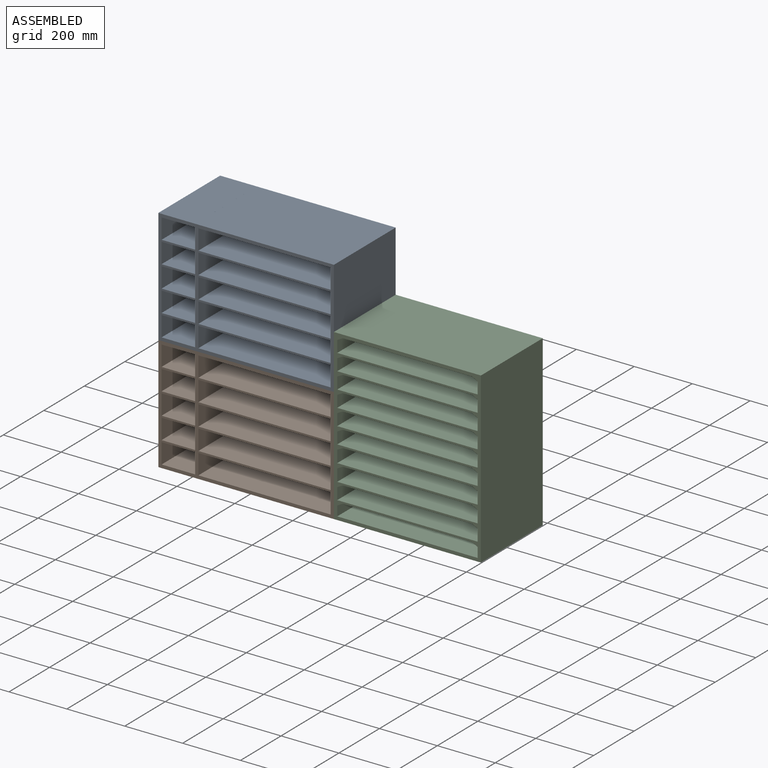
[diagram: assembled view]
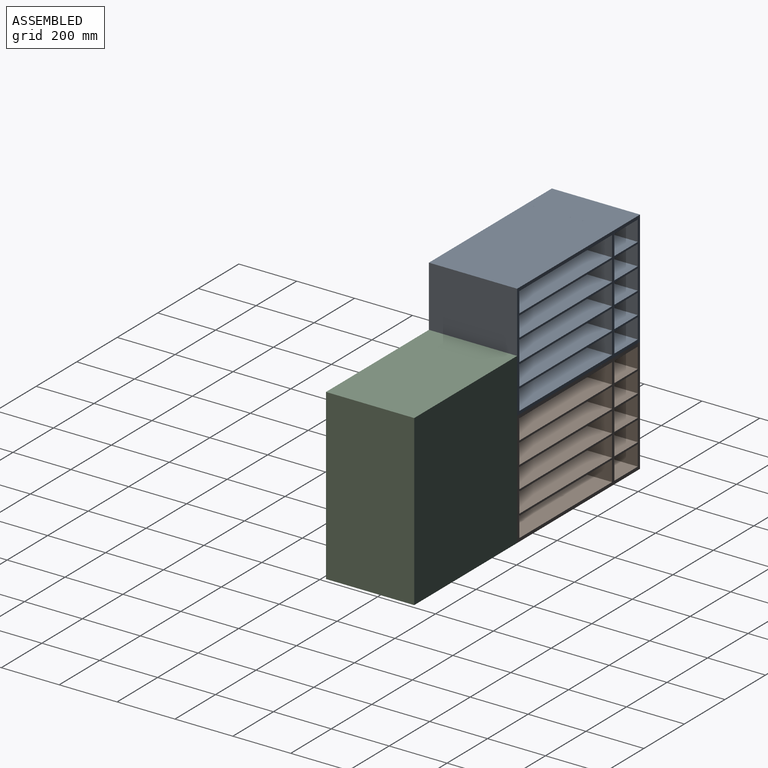
[diagram: assembled view, second angle]
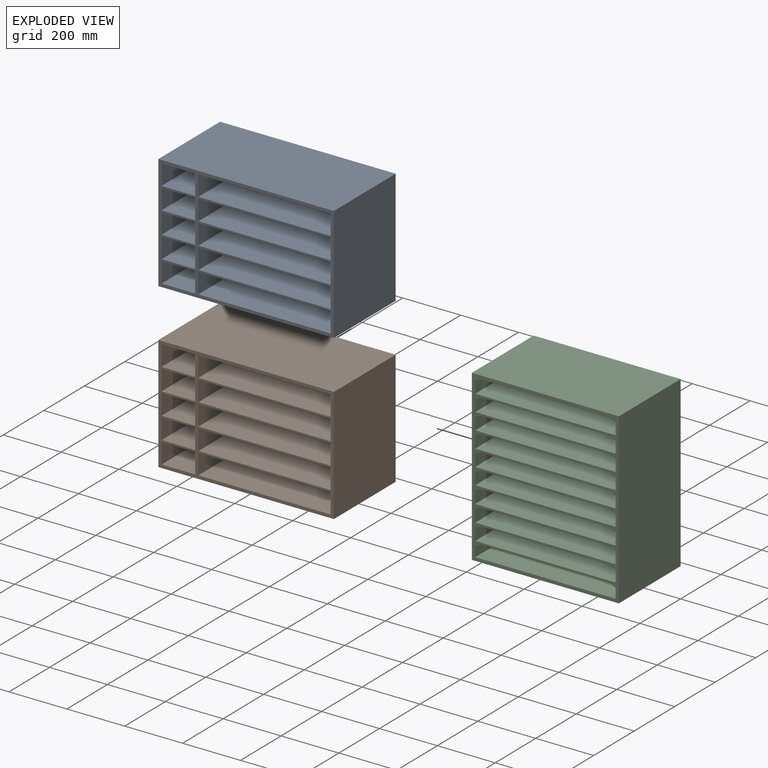
[diagram: exploded view]
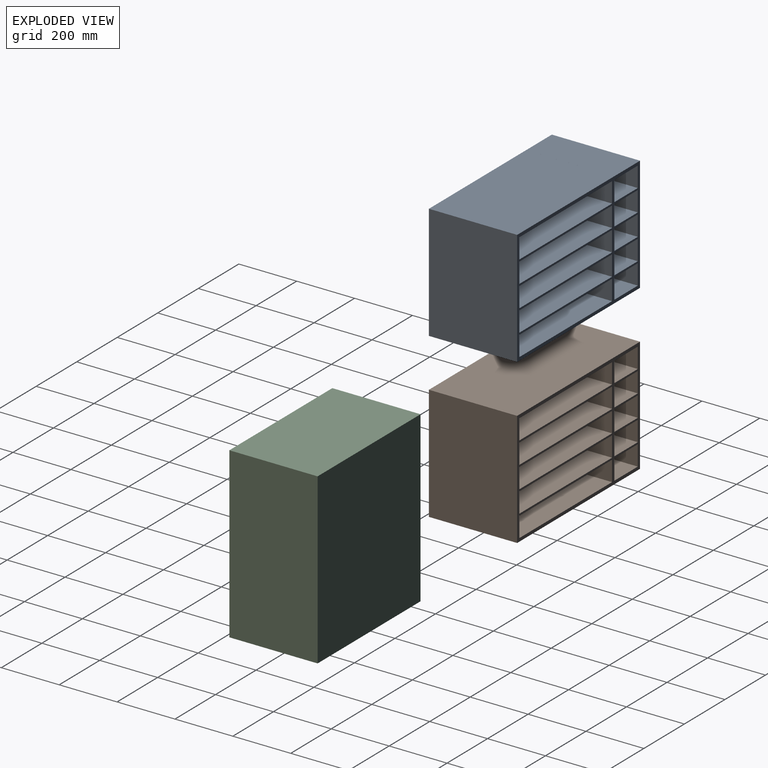
[diagram: exploded view, second angle]
ASSEMBLY  parts=3 mates=2
PART A: 49 faces, bbox 397x606.6x304.8 mm
  f0: plane 385.83x304.8mm, normal (0,-1,0), area 117599.8mm2, adj f1,f2,f5,f26
  f1: plane 606.57x397mm, normal (0,0,1), area 40674mm2, adj f0,f3,f4,f5,f6,f7,f8,f9
  f2: plane 606.57x397mm, normal (0,0,-1), area 40674mm2, adj f0,f3,f4,f5,f6,f7,f8,f9
  f3: plane 479.55x304.8mm, normal (1,0,0), area 146167.4mm2, adj f1,f2,f4,f48
  f4: plane 397x304.8mm, normal (0,1,0), area 121006.2mm2, adj f1,f2,f3,f5
  f5: plane 479.55x304.8mm, normal (-1,0,0), area 146167.4mm2, adj f0,f1,f2,f4
  f6: plane 304.8x69.85mm, normal (0,1,0), area 21290.3mm2, adj f1,f2,f7,f21
  f7: plane 457.2x304.8mm, normal (1,0,0), area 139354.6mm2, adj f1,f2,f6,f8
  f8: plane 304.8x69.85mm, normal (0,-1,0), area 21290.3mm2, adj f1,f2,f7,f21
  f9: plane 304.8x69.85mm, normal (0,1,0), area 21290.3mm2, adj f1,f2,f10,f22
  f10: plane 457.2x304.8mm, normal (1,0,0), area 139354.6mm2, adj f1,f2,f9,f11
  f11: plane 304.8x69.85mm, normal (0,-1,0), area 21290.3mm2, adj f1,f2,f10,f22
  f12: plane 304.8x69.85mm, normal (0,1,0), area 21290.3mm2, adj f1,f2,f13,f23
  f13: plane 457.2x304.8mm, normal (1,0,0), area 139354.6mm2, adj f1,f2,f12,f14
  f14: plane 304.8x69.85mm, normal (0,-1,0), area 21290.3mm2, adj f1,f2,f13,f23
  f15: plane 457.2x304.8mm, normal (-1,0,0), area 139354.6mm2, adj f1,f2,f16,f24
  f16: plane 304.8x69.85mm, normal (0,1,0), area 21290.3mm2, adj f1,f2,f15,f17
  f17: plane 457.2x304.8mm, normal (1,0,0), area 139354.6mm2, adj f1,f2,f16,f24
  f18: plane 304.8x69.85mm, normal (0,1,0), area 21290.3mm2, adj f1,f2,f19,f25
  f19: plane 457.2x304.8mm, normal (1,0,0), area 139354.6mm2, adj f1,f2,f18,f20
  f20: plane 304.8x69.85mm, normal (0,-1,0), area 21290.3mm2, adj f1,f2,f19,f25
  f21: plane 457.2x304.8mm, normal (-1,0,0), area 139354.6mm2, adj f1,f2,f6,f8
  f22: plane 457.2x304.8mm, normal (-1,0,0), area 139354.6mm2, adj f1,f2,f9,f11
  f23: plane 457.2x304.8mm, normal (-1,0,0), area 139354.6mm2, adj f1,f2,f12,f14
  f24: plane 304.8x69.85mm, normal (0,-1,0), area 21290.3mm2, adj f1,f2,f15,f17
  f25: plane 457.2x304.8mm, normal (-1,0,0), area 139354.6mm2, adj f1,f2,f18,f20
  f26: plane 304.8x115.84mm, normal (-1,0,0), area 35307.1mm2, adj f0,f1,f2,f27
  f27: plane 304.8x69.85mm, normal (0,1,0), area 21290.3mm2, adj f1,f2,f26,f28
  f28: plane 304.8x115.83mm, normal (1,0,0), area 35306.4mm2, adj f1,f2,f27,f29
  f29: plane 304.8x6.35mm, normal (0,1,0), area 1935.5mm2, adj f1,f2,f28,f30
  f30: plane 304.8x115.83mm, normal (-1,0,0), area 35306.3mm2, adj f1,f2,f29,f31
  f31: plane 304.8x69.85mm, normal (0,1,0), area 21290.3mm2, adj f1,f2,f30,f32
  f32: plane 304.8x115.83mm, normal (1,0,0), area 35305.6mm2, adj f1,f2,f31,f33
  f33: plane 304.8x6.35mm, normal (0,1,0), area 1935.5mm2, adj f1,f2,f32,f34
  f34: plane 304.8x115.83mm, normal (-1,0,0), area 35305.5mm2, adj f1,f2,f33,f35
  f35: plane 304.8x69.85mm, normal (0,1,0), area 21290.3mm2, adj f1,f2,f34,f36
  f36: plane 304.8x115.83mm, normal (1,0,0), area 35304.8mm2, adj f1,f2,f35,f37
  f37: plane 304.8x6.35mm, normal (0,1,0), area 1935.5mm2, adj f1,f2,f36,f38
  f38: plane 304.8x115.83mm, normal (-1,0,0), area 35304.8mm2, adj f1,f2,f37,f39
  f39: plane 304.8x69.85mm, normal (0,1,0), area 21290.3mm2, adj f1,f2,f38,f40
  f40: plane 304.8x115.83mm, normal (1,0,0), area 35304mm2, adj f1,f2,f39,f41
  f41: plane 304.8x6.35mm, normal (0,1,0), area 1935.5mm2, adj f1,f2,f40,f42
  f42: plane 304.8x115.83mm, normal (-1,0,0), area 35304mm2, adj f1,f2,f41,f43
  f43: plane 304.8x69.85mm, normal (0,1,0), area 21290.3mm2, adj f1,f2,f42,f44
  f44: plane 304.8x115.82mm, normal (1,0,0), area 35303.3mm2, adj f1,f2,f43,f45
  f45: plane 304.8x11.18mm, normal (0,1,0), area 3406.4mm2, adj f1,f2,f44,f46
  f46: plane 304.8x127mm, normal (-1,0,0), area 38709.6mm2, adj f1,f2,f45,f47
  f47: plane 397x304.8mm, normal (0,-1,0), area 121006.2mm2, adj f1,f2,f46,f48
  f48: plane 304.8x127.01mm, normal (1,0,0), area 38713.6mm2, adj f1,f2,f3,f47
PART B: same geometry as A
PART C: 76 faces, bbox 508x304.8x584.2 mm
  f0: plane 485.14x50.8mm, normal (0,-1,0), area 24451.6mm2, adj f1,f22,f23,f54,f70,f75
  f1: plane 447.04x292.1mm, normal (0,0,-1), area 130580.4mm2, adj f0,f40,f70,f75
  f2: plane 485.14x50.8mm, normal (0,-1,0), area 24451.6mm2, adj f5,f19,f20,f55,f71,f74
  f3: plane 485.14x52.07mm, normal (0,-1,0), area 25067.7mm2, adj f4,f17,f18,f52,f72,f73
  f4: plane 447.04x292.1mm, normal (0,0,-1), area 130580.4mm2, adj f3,f40,f72,f73
  f5: plane 447.04x292.1mm, normal (0,0,-1), area 130580.4mm2, adj f2,f40,f71,f74
  f6: plane 485.14x52.07mm, normal (0,-1,0), area 25067.7mm2, adj f13,f24,f25,f51,f60,f67
  f7: plane 485.14x50.8mm, normal (0,-1,0), area 24451.6mm2, adj f8,f34,f35,f50,f58,f65
  f8: plane 447.04x292.1mm, normal (0,0,-1), area 130580.4mm2, adj f7,f40,f58,f65
  f9: plane 485.14x50.8mm, normal (0,-1,0), area 24451.6mm2, adj f16,f36,f37,f48,f56,f64
  f10: plane 485.14x50.8mm, normal (0,-1,0), area 24451.6mm2, adj f15,f44,f46,f47,f57,f63
  f11: plane 447.04x292.1mm, normal (0,0,-1), area 130580.4mm2, adj f33,f40,f62,f69
  f12: plane 447.04x292.1mm, normal (0,0,-1), area 130580.4mm2, adj f26,f40,f61,f68
  f13: plane 447.04x292.1mm, normal (0,0,-1), area 130580.4mm2, adj f6,f40,f60,f67
  f14: plane 447.04x292.1mm, normal (0,0,-1), area 130580.4mm2, adj f21,f40,f59,f66
  f15: plane 447.04x292.1mm, normal (0,0,-1), area 130580.4mm2, adj f10,f40,f57,f63
  f16: plane 447.04x292.1mm, normal (0,0,-1), area 130580.4mm2, adj f9,f40,f56,f64
  f17: plane 292.1x41.91mm, normal (1,0,0), area 12241.9mm2, adj f3,f40,f52,f73
  f18: plane 292.1x41.91mm, normal (-1,0,0), area 12241.9mm2, adj f3,f40,f52,f72
  f19: plane 292.1x40.64mm, normal (1,0,0), area 11870.9mm2, adj f2,f40,f55,f74
  f20: plane 292.1x40.64mm, normal (-1,0,0), area 11870.9mm2, adj f2,f40,f55,f71
  f21: plane 485.14x50.8mm, normal (0,-1,0), area 24451.6mm2, adj f14,f29,f30,f53,f59,f66
  f22: plane 292.1x40.64mm, normal (1,0,0), area 11870.9mm2, adj f0,f40,f54,f75
  f23: plane 292.1x40.64mm, normal (-1,0,0), area 11870.9mm2, adj f0,f40,f54,f70
  f24: plane 292.1x41.91mm, normal (1,0,0), area 12241.9mm2, adj f6,f40,f51,f67
  f25: plane 292.1x41.91mm, normal (-1,0,0), area 12241.9mm2, adj f6,f40,f51,f60
  f26: plane 485.14x50.8mm, normal (0,-1,0), area 24451.6mm2, adj f12,f27,f28,f49,f61,f68
  f27: plane 292.1x40.64mm, normal (1,0,0), area 11870.9mm2, adj f26,f40,f49,f68
  f28: plane 292.1x40.64mm, normal (-1,0,0), area 11870.9mm2, adj f26,f40,f49,f61
  f29: plane 292.1x40.64mm, normal (1,0,0), area 11870.9mm2, adj f21,f40,f53,f66
  f30: plane 292.1x40.64mm, normal (-1,0,0), area 11870.9mm2, adj f21,f40,f53,f59
  f31: plane 292.1x34.29mm, normal (1,0,0), area 10016.1mm2, adj f33,f40,f45,f69
  f32: plane 292.1x34.29mm, normal (-1,0,0), area 10016.1mm2, adj f33,f40,f45,f62
  f33: plane 485.14x44.45mm, normal (0,-1,0), area 21370.9mm2, adj f11,f31,f32,f45,f62,f69
  f34: plane 292.1x40.64mm, normal (1,0,0), area 11870.9mm2, adj f7,f40,f50,f65
  f35: plane 292.1x40.64mm, normal (-1,0,0), area 11870.9mm2, adj f7,f40,f50,f58
  f36: plane 292.1x40.64mm, normal (1,0,0), area 11870.9mm2, adj f9,f40,f48,f64
  f37: plane 292.1x40.64mm, normal (-1,0,0), area 11870.9mm2, adj f9,f40,f48,f56
  f38: plane 584.2x508mm, normal (0,1,0), area 296773.6mm2, adj f39,f41,f42,f43
  f39: plane 584.2x304.8mm, normal (-1,0,0), area 178064.2mm2, adj f38,f40,f42,f43
  f40: plane 584.2x508mm, normal (0,-1,0), area 54106.3mm2, adj f1,f4,f5,f8,f11,f12,f13,f14
  f41: plane 584.2x304.8mm, normal (1,0,0), area 178064.2mm2, adj f38,f40,f42,f43
  f42: plane 508x304.8mm, normal (0,0,1), area 154838.4mm2, adj f38,f39,f40,f41
  f43: plane 508x304.8mm, normal (0,0,-1), area 154838.4mm2, adj f38,f39,f40,f41
  f44: plane 292.1x40.64mm, normal (1,0,0), area 11870.9mm2, adj f10,f40,f47,f63
  f45: plane 485.14x292.1mm, normal (0,0,1), area 141709.4mm2, adj f31,f32,f33,f40
  f46: plane 292.1x40.64mm, normal (-1,0,0), area 11870.9mm2, adj f10,f40,f47,f57
  f47: plane 485.14x292.1mm, normal (0,0,1), area 141709.4mm2, adj f10,f40,f44,f46
  f48: plane 485.14x292.1mm, normal (0,0,1), area 141709.4mm2, adj f9,f36,f37,f40
  f49: plane 485.14x292.1mm, normal (0,0,1), area 141709.4mm2, adj f26,f27,f28,f40
  f50: plane 485.14x292.1mm, normal (0,0,1), area 141709.4mm2, adj f7,f34,f35,f40
  f51: plane 485.14x292.1mm, normal (0,0,1), area 141709.4mm2, adj f6,f24,f25,f40
  f52: plane 485.14x292.1mm, normal (0,0,1), area 141709.4mm2, adj f3,f17,f18,f40
  f53: plane 485.14x292.1mm, normal (0,0,1), area 141709.4mm2, adj f21,f29,f30,f40
  f54: plane 485.14x292.1mm, normal (0,0,1), area 141709.4mm2, adj f0,f22,f23,f40
  f55: plane 485.14x292.1mm, normal (0,0,1), area 141709.4mm2, adj f2,f19,f20,f40
  f56: plane 292.1x19.05mm, normal (-0.47,0,-0.88), area 6306.4mm2, adj f9,f16,f37,f40
  f57: plane 292.1x19.05mm, normal (-0.47,0,-0.88), area 6306.4mm2, adj f10,f15,f40,f46
  f58: plane 292.1x19.05mm, normal (-0.47,0,-0.88), area 6306.4mm2, adj f7,f8,f35,f40
  f59: plane 292.1x19.05mm, normal (-0.47,0,-0.88), area 6306.4mm2, adj f14,f21,f30,f40
  f60: plane 292.1x19.05mm, normal (-0.47,0,-0.88), area 6306.4mm2, adj f6,f13,f25,f40
  f61: plane 292.1x19.05mm, normal (-0.47,0,-0.88), area 6306.4mm2, adj f12,f26,f28,f40
  f62: plane 292.1x19.05mm, normal (-0.47,0,-0.88), area 6306.4mm2, adj f11,f32,f33,f40
  f63: plane 292.1x19.05mm, normal (0.47,0,-0.88), area 6306.4mm2, adj f10,f15,f40,f44
  f64: plane 292.1x19.05mm, normal (0.47,0,-0.88), area 6306.4mm2, adj f9,f16,f36,f40
  f65: plane 292.1x19.05mm, normal (0.47,0,-0.88), area 6306.4mm2, adj f7,f8,f34,f40
  f66: plane 292.1x19.05mm, normal (0.47,0,-0.88), area 6306.4mm2, adj f14,f21,f29,f40
  f67: plane 292.1x19.05mm, normal (0.47,0,-0.88), area 6306.4mm2, adj f6,f13,f24,f40
  f68: plane 292.1x19.05mm, normal (0.47,0,-0.88), area 6306.4mm2, adj f12,f26,f27,f40
  f69: plane 292.1x19.05mm, normal (0.47,0,-0.88), area 6306.4mm2, adj f11,f31,f33,f40
  f70: plane 292.1x19.05mm, normal (-0.47,0,-0.88), area 6306.4mm2, adj f0,f1,f23,f40
  f71: plane 292.1x19.05mm, normal (-0.47,0,-0.88), area 6306.4mm2, adj f2,f5,f20,f40
  f72: plane 292.1x19.05mm, normal (-0.47,0,-0.88), area 6306.4mm2, adj f3,f4,f18,f40
  f73: plane 292.1x19.05mm, normal (0.47,0,-0.88), area 6306.4mm2, adj f3,f4,f17,f40
  f74: plane 292.1x19.05mm, normal (0.47,0,-0.88), area 6306.4mm2, adj f2,f5,f19,f40
  f75: plane 292.1x19.05mm, normal (0.47,0,-0.88), area 6306.4mm2, adj f0,f1,f22,f40
PLACE A rot(axis=(0.58,0.58,-0.58),120deg) t=(675.91,343.1,610.29)mm
PLACE B rot(axis=(0.58,0.58,-0.58),120deg) t=(675.91,343.1,213.28)mm
PLACE C t=(1118.89,178,11.61)mm
MATE fastened B.f4 <-> C.f39  axis (1,0,0) through (915.69,38.3,11.61)mm
MATE fastened A.f1 <-> B.f1  axis (0,-1,0) through (915.69,38.3,408.61)mm
